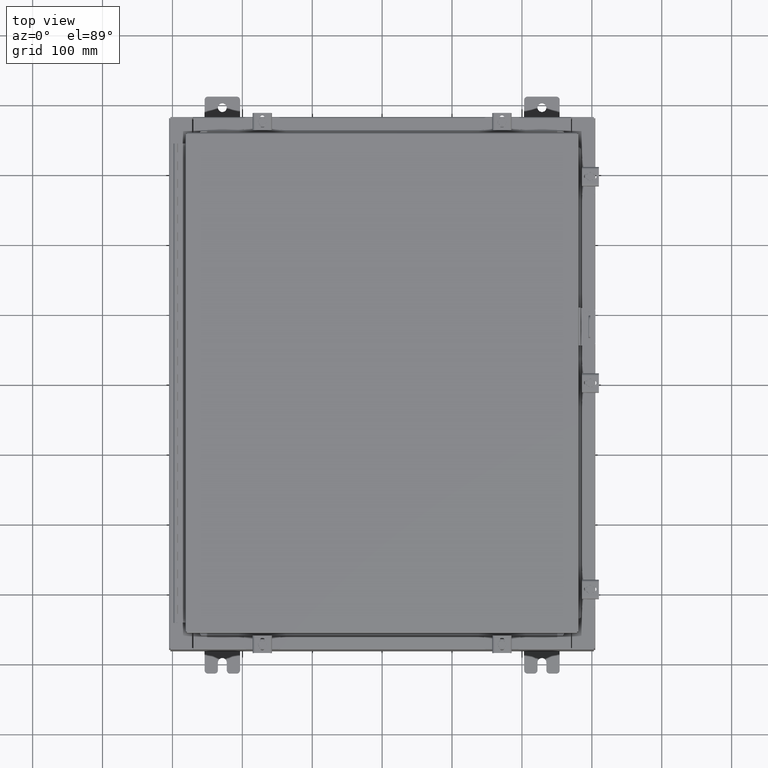
[diagram: clean part render]
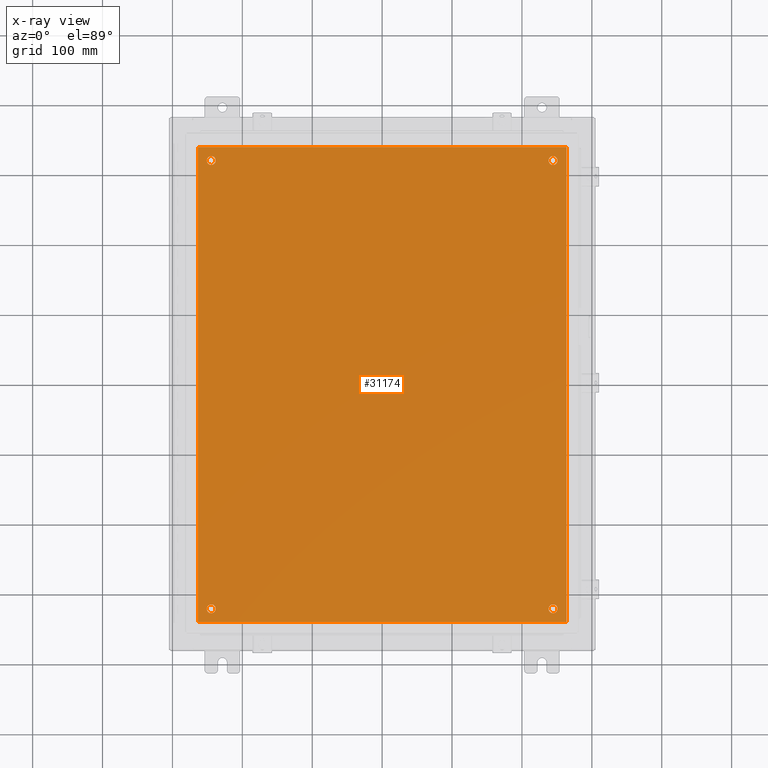
[diagram: x-ray — body ghosted, one internal face saturated and labeled with its STEP entity id]
A machine part, top view, then the same camera in x-ray: the body is ghosted and one INTERNAL B-rep face — a face not visible from any outside direction — is saturated and labeled: STEP entity #31174.
In plain terms, the highlighted planar face has unit normal (0, 0, -1).
Its self-contained STEP definition (entity closure, byte-faithful):
#76 = VERTEX_POINT ( 'NONE', #5694 ) ;
#85 = ORIENTED_EDGE ( 'NONE', *, *, #25680, .T. ) ;
#432 = AXIS2_PLACEMENT_3D ( 'NONE', #679, #21108, #3589 ) ;
#476 = FACE_BOUND ( 'NONE', #32918, .T. ) ;
#537 = CARTESIAN_POINT ( 'NONE',  ( -9.375000000000007100, -12.62500000000000000, -0.1039999999999999800 ) ) ;
#679 = CARTESIAN_POINT ( 'NONE',  ( 9.625000000000007100, -12.62500000000000000, -0.1039999999999999800 ) ) ;
#1265 = AXIS2_PLACEMENT_3D ( 'NONE', #37951, #20351, #2848 ) ;
#1346 = CIRCLE ( 'NONE', #18403, 0.2500000000000008900 ) ;
#2509 = CARTESIAN_POINT ( 'NONE',  ( -9.625000000000007100, -12.62500000000000000, -0.1039999999999999800 ) ) ;
#2817 = ORIENTED_EDGE ( 'NONE', *, *, #29566, .T. ) ;
#2848 = DIRECTION ( 'NONE',  ( -1.000000000000000000, 0.0000000000000000000, 0.0000000000000000000 ) ) ;
#3182 = EDGE_CURVE ( 'NONE', #34508, #19876, #33130, .T. ) ;
#3303 = EDGE_CURVE ( 'NONE', #21661, #14554, #22523, .T. ) ;
#3589 = DIRECTION ( 'NONE',  ( -1.000000000000000000, 0.0000000000000000000, 0.0000000000000000000 ) ) ;
#4185 = LINE ( 'NONE', #8917, #26627 ) ;
#5432 = DIRECTION ( 'NONE',  ( -1.000000000000000000, 0.0000000000000000000, 0.0000000000000000000 ) ) ;
#5503 = PLANE ( 'NONE',  #14077 ) ;
#5694 = CARTESIAN_POINT ( 'NONE',  ( 9.375000000000007100, -12.62500000000000000, -0.1039999999999999800 ) ) ;
#5698 = EDGE_CURVE ( 'NONE', #19116, #7677, #24854, .T. ) ;
#5750 = ORIENTED_EDGE ( 'NONE', *, *, #33990, .F. ) ;
#6083 = VERTEX_POINT ( 'NONE', #17131 ) ;
#6111 = DIRECTION ( 'NONE',  ( -0.0000000000000000000, -0.0000000000000000000, 1.000000000000000000 ) ) ;
#7161 = LINE ( 'NONE', #7683, #21802 ) ;
#7399 = CARTESIAN_POINT ( 'NONE',  ( 9.625000000000007100, 12.62500000000000000, -0.1039999999999999800 ) ) ;
#7677 = VERTEX_POINT ( 'NONE', #32470 ) ;
#7683 = CARTESIAN_POINT ( 'NONE',  ( 10.50000000000000400, 13.38299999999999900, -0.1040000000000009100 ) ) ;
#8051 = CIRCLE ( 'NONE', #1265, 0.2499999999999998100 ) ;
#8199 = FACE_BOUND ( 'NONE', #16315, .T. ) ;
#8573 = CIRCLE ( 'NONE', #432, 0.2499999999999998100 ) ;
#8917 = CARTESIAN_POINT ( 'NONE',  ( -10.50000000000000200, -13.38299999999999900, -0.1040000000000009100 ) ) ;
#8986 = CARTESIAN_POINT ( 'NONE',  ( 9.625000000000007100, 12.62500000000000000, -0.1039999999999999800 ) ) ;
#9129 = ORIENTED_EDGE ( 'NONE', *, *, #11986, .T. ) ;
#9172 = CARTESIAN_POINT ( 'NONE',  ( 10.38300000000000100, -13.38299999999999700, -0.1040000000000009100 ) ) ;
#9524 = AXIS2_PLACEMENT_3D ( 'NONE', #2509, #22953, #5432 ) ;
#10097 = EDGE_LOOP ( 'NONE', ( #18050, #21417 ) ) ;
#10207 = CARTESIAN_POINT ( 'NONE',  ( -9.875000000000007100, 12.62500000000000000, -0.1039999999999999800 ) ) ;
#10358 = DIRECTION ( 'NONE',  ( -1.000000000000000000, 0.0000000000000000000, 0.0000000000000000000 ) ) ;
#10542 = ORIENTED_EDGE ( 'NONE', *, *, #24280, .F. ) ;
#10801 = DIRECTION ( 'NONE',  ( 0.0000000000000000000, 1.000000000000000000, 0.0000000000000000000 ) ) ;
#11249 = CARTESIAN_POINT ( 'NONE',  ( 0.0000000000000000000, 0.0000000000000000000, -0.1039999999999999800 ) ) ;
#11379 = DIRECTION ( 'NONE',  ( -1.000000000000000000, 0.0000000000000000000, -0.0000000000000000000 ) ) ;
#11933 = DIRECTION ( 'NONE',  ( -1.000000000000000000, 0.0000000000000000000, 0.0000000000000000000 ) ) ;
#11986 = EDGE_CURVE ( 'NONE', #6083, #30928, #23991, .T. ) ;
#13292 = AXIS2_PLACEMENT_3D ( 'NONE', #7399, #27894, #10358 ) ;
#13959 = ORIENTED_EDGE ( 'NONE', *, *, #17092, .T. ) ;
#14077 = AXIS2_PLACEMENT_3D ( 'NONE', #11249, #28805, #11379 ) ;
#14554 = VERTEX_POINT ( 'NONE', #537 ) ;
#15760 = AXIS2_PLACEMENT_3D ( 'NONE', #8986, #29496, #11933 ) ;
#16016 = FACE_OUTER_BOUND ( 'NONE', #31901, .T. ) ;
#16315 = EDGE_LOOP ( 'NONE', ( #2817, #9129 ) ) ;
#16418 = CARTESIAN_POINT ( 'NONE',  ( 9.875000000000007100, -12.62500000000000000, -0.1039999999999999800 ) ) ;
#16581 = DIRECTION ( 'NONE',  ( -0.0000000000000000000, -0.0000000000000000000, 1.000000000000000000 ) ) ;
#17059 = DIRECTION ( 'NONE',  ( -0.0000000000000000000, -0.0000000000000000000, 1.000000000000000000 ) ) ;
#17092 = EDGE_CURVE ( 'NONE', #14554, #21661, #33316, .T. ) ;
#17097 = VECTOR ( 'NONE', #25820, 39.37007874015748100 ) ;
#17131 = CARTESIAN_POINT ( 'NONE',  ( 9.375000000000007100, 12.62500000000000000, -0.1039999999999999800 ) ) ;
#17147 = EDGE_CURVE ( 'NONE', #33957, #76, #8051, .T. ) ;
#17215 = ORIENTED_EDGE ( 'NONE', *, *, #3182, .T. ) ;
#17244 = CARTESIAN_POINT ( 'NONE',  ( -9.375000000000007100, 12.62500000000000000, -0.1039999999999999800 ) ) ;
#18050 = ORIENTED_EDGE ( 'NONE', *, *, #17147, .T. ) ;
#18403 = AXIS2_PLACEMENT_3D ( 'NONE', #23632, #6111, #26598 ) ;
#19116 = VERTEX_POINT ( 'NONE', #30743 ) ;
#19585 = VERTEX_POINT ( 'NONE', #9172 ) ;
#19609 = AXIS2_PLACEMENT_3D ( 'NONE', #34626, #17059, #37579 ) ;
#19876 = VERTEX_POINT ( 'NONE', #17244 ) ;
#20172 = ORIENTED_EDGE ( 'NONE', *, *, #5698, .F. ) ;
#20351 = DIRECTION ( 'NONE',  ( -0.0000000000000000000, -0.0000000000000000000, 1.000000000000000000 ) ) ;
#20367 = CARTESIAN_POINT ( 'NONE',  ( 9.875000000000007100, 12.62500000000000000, -0.1039999999999999800 ) ) ;
#21108 = DIRECTION ( 'NONE',  ( -0.0000000000000000000, -0.0000000000000000000, 1.000000000000000000 ) ) ;
#21417 = ORIENTED_EDGE ( 'NONE', *, *, #33231, .T. ) ;
#21661 = VERTEX_POINT ( 'NONE', #30972 ) ;
#21802 = VECTOR ( 'NONE', #22409, 39.37007874015748100 ) ;
#22201 = ORIENTED_EDGE ( 'NONE', *, *, #26153, .F. ) ;
#22409 = DIRECTION ( 'NONE',  ( -1.000000000000000000, -0.0000000000000000000, -0.0000000000000000000 ) ) ;
#22523 = CIRCLE ( 'NONE', #9524, 0.2500000000000008900 ) ;
#22870 = CARTESIAN_POINT ( 'NONE',  ( -10.38300000000000100, 13.38299999999999700, -0.1040000000000020100 ) ) ;
#22953 = DIRECTION ( 'NONE',  ( -0.0000000000000000000, -0.0000000000000000000, 1.000000000000000000 ) ) ;
#23225 = VERTEX_POINT ( 'NONE', #32872 ) ;
#23632 = CARTESIAN_POINT ( 'NONE',  ( -9.625000000000007100, 12.62500000000000000, -0.1039999999999999800 ) ) ;
#23991 = CIRCLE ( 'NONE', #15760, 0.2499999999999998100 ) ;
#24280 = EDGE_CURVE ( 'NONE', #7677, #19585, #4185, .T. ) ;
#24854 = LINE ( 'NONE', #22870, #17097 ) ;
#25680 = EDGE_CURVE ( 'NONE', #19876, #34508, #1346, .T. ) ;
#25820 = DIRECTION ( 'NONE',  ( 0.0000000000000000000, -1.000000000000000000, 0.0000000000000000000 ) ) ;
#26153 = EDGE_CURVE ( 'NONE', #19585, #23225, #27406, .T. ) ;
#26486 = DIRECTION ( 'NONE',  ( 1.000000000000000000, -0.0000000000000000000, -0.0000000000000000000 ) ) ;
#26488 = VECTOR ( 'NONE', #10801, 39.37007874015748100 ) ;
#26598 = DIRECTION ( 'NONE',  ( -1.000000000000000000, 0.0000000000000000000, 0.0000000000000000000 ) ) ;
#26627 = VECTOR ( 'NONE', #26486, 39.37007874015748100 ) ;
#27166 = ORIENTED_EDGE ( 'NONE', *, *, #3303, .T. ) ;
#27300 = EDGE_LOOP ( 'NONE', ( #13959, #27166 ) ) ;
#27406 = LINE ( 'NONE', #31343, #26488 ) ;
#27894 = DIRECTION ( 'NONE',  ( -0.0000000000000000000, -0.0000000000000000000, 1.000000000000000000 ) ) ;
#28805 = DIRECTION ( 'NONE',  ( 0.0000000000000000000, 0.0000000000000000000, -1.000000000000000000 ) ) ;
#29496 = DIRECTION ( 'NONE',  ( -0.0000000000000000000, -0.0000000000000000000, 1.000000000000000000 ) ) ;
#29566 = EDGE_CURVE ( 'NONE', #30928, #6083, #31299, .T. ) ;
#29923 = AXIS2_PLACEMENT_3D ( 'NONE', #34147, #16581, #37113 ) ;
#30686 = FACE_BOUND ( 'NONE', #10097, .T. ) ;
#30743 = CARTESIAN_POINT ( 'NONE',  ( -10.38300000000000100, 13.38299999999999700, -0.1040000000000020100 ) ) ;
#30928 = VERTEX_POINT ( 'NONE', #20367 ) ;
#30972 = CARTESIAN_POINT ( 'NONE',  ( -9.875000000000007100, -12.62500000000000000, -0.1039999999999999800 ) ) ;
#31174 = ADVANCED_FACE ( 'NONE', ( #31630, #30686, #8199, #476, #16016 ), #5503, .T. ) ;
#31299 = CIRCLE ( 'NONE', #13292, 0.2499999999999998100 ) ;
#31343 = CARTESIAN_POINT ( 'NONE',  ( 10.38300000000000100, -13.38299999999999700, -0.1040000000000009100 ) ) ;
#31630 = FACE_BOUND ( 'NONE', #27300, .T. ) ;
#31901 = EDGE_LOOP ( 'NONE', ( #10542, #20172, #5750, #22201 ) ) ;
#32470 = CARTESIAN_POINT ( 'NONE',  ( -10.38300000000000100, -13.38299999999999900, -0.1040000000000009100 ) ) ;
#32872 = CARTESIAN_POINT ( 'NONE',  ( 10.38300000000000100, 13.38299999999999700, -0.1040000000000009100 ) ) ;
#32918 = EDGE_LOOP ( 'NONE', ( #85, #17215 ) ) ;
#33130 = CIRCLE ( 'NONE', #29923, 0.2500000000000008900 ) ;
#33231 = EDGE_CURVE ( 'NONE', #76, #33957, #8573, .T. ) ;
#33316 = CIRCLE ( 'NONE', #19609, 0.2500000000000008900 ) ;
#33957 = VERTEX_POINT ( 'NONE', #16418 ) ;
#33990 = EDGE_CURVE ( 'NONE', #23225, #19116, #7161, .T. ) ;
#34147 = CARTESIAN_POINT ( 'NONE',  ( -9.625000000000007100, 12.62500000000000000, -0.1039999999999999800 ) ) ;
#34508 = VERTEX_POINT ( 'NONE', #10207 ) ;
#34626 = CARTESIAN_POINT ( 'NONE',  ( -9.625000000000007100, -12.62500000000000000, -0.1039999999999999800 ) ) ;
#37113 = DIRECTION ( 'NONE',  ( -1.000000000000000000, 0.0000000000000000000, 0.0000000000000000000 ) ) ;
#37579 = DIRECTION ( 'NONE',  ( -1.000000000000000000, 0.0000000000000000000, 0.0000000000000000000 ) ) ;
#37951 = CARTESIAN_POINT ( 'NONE',  ( 9.625000000000007100, -12.62500000000000000, -0.1039999999999999800 ) ) ;